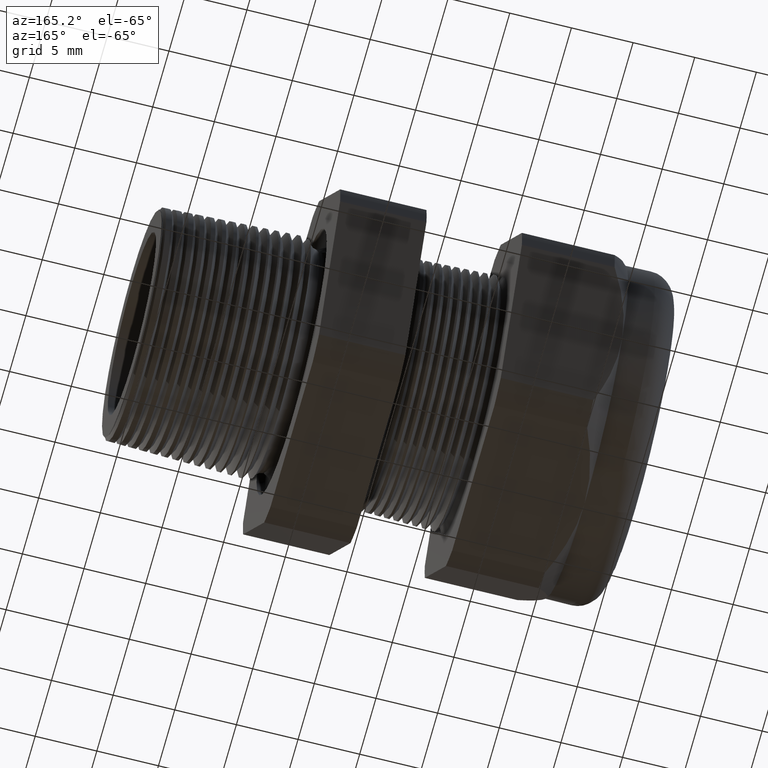
[diagram: clean part render]
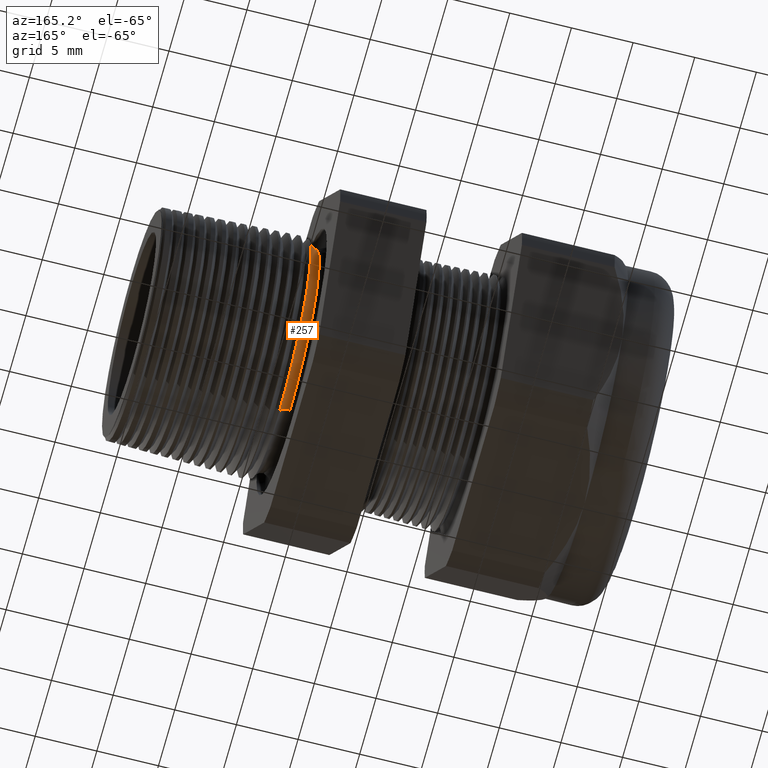
[diagram: same view with one face highlighted and labeled with its STEP entity id]
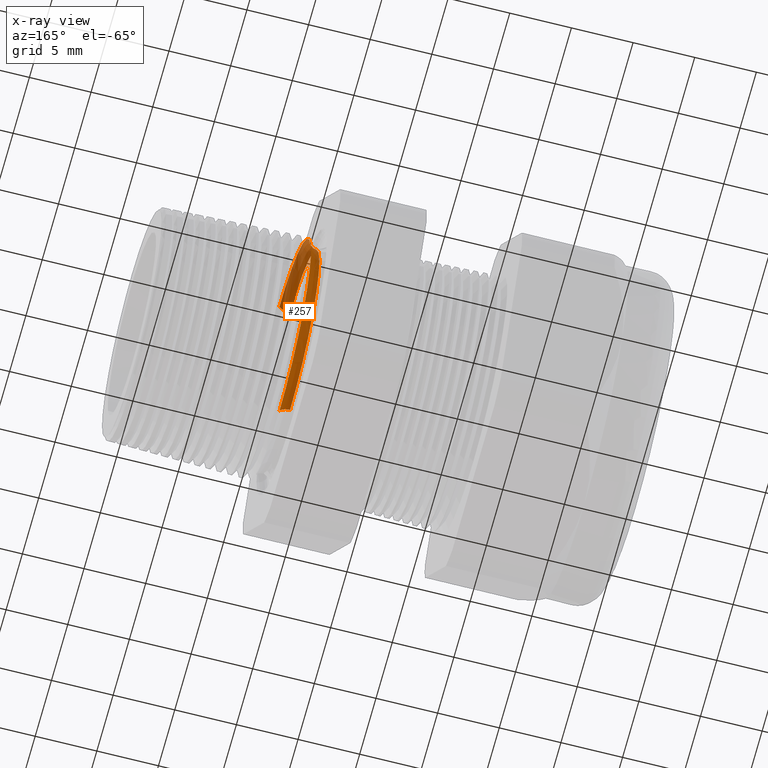
[diagram: x-ray of the same camera — body ghosted, the highlighted face saturated]
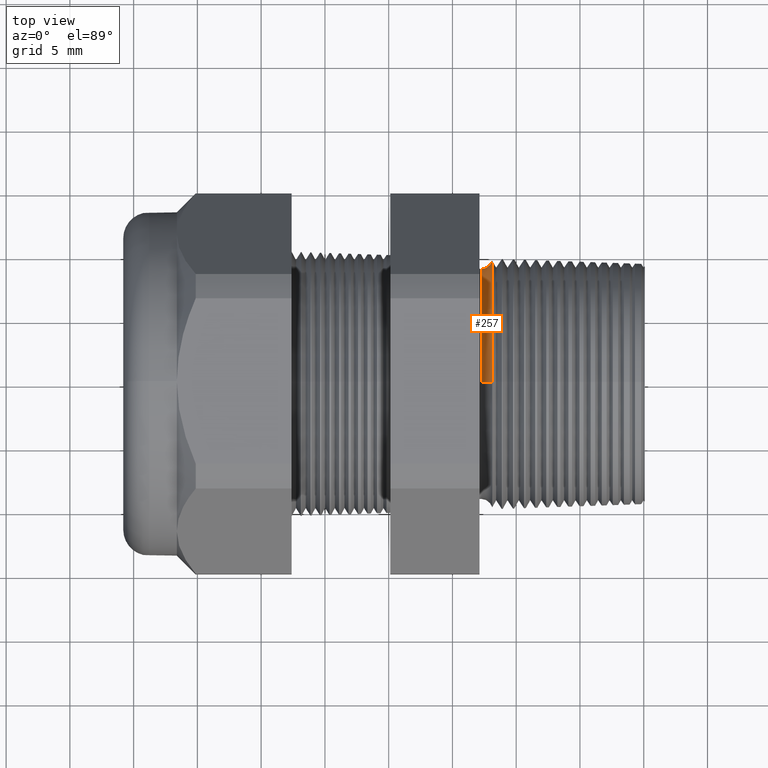
[diagram: same view with one face highlighted and labeled with its STEP entity id]
A machine part, auxiliary view. The second image highlights one B-rep face of the part: STEP entity #257.
The next image is the same camera in x-ray: the body ghosted, the highlighted face saturated — about 32% of this face is hidden behind the body in this view.
A second angle (top view) of the same face is appended — the face is thin or edge-on in the first view.
In plain terms, the highlighted toroidal blend (fillet) surface has major radius 9.8993 mm and minor (blend) radius 0.889 mm.
Its self-contained STEP definition (entity closure, byte-faithful):
#250 = VERTEX_POINT ( 'NONE', #914 ) ;
#257 = ADVANCED_FACE ( 'NONE', ( #913 ), #976, .F. ) ;
#260 = ORIENTED_EDGE ( 'NONE', *, *, #322, .T. ) ;
#262 = ORIENTED_EDGE ( 'NONE', *, *, #263, .F. ) ;
#263 = EDGE_CURVE ( 'NONE', #323, #317, #971, .T. ) ;
#311 = EDGE_LOOP ( 'NONE', ( #260, #325, #315, #262 ) ) ;
#314 = EDGE_CURVE ( 'NONE', #324, #250, #1069, .T. ) ;
#315 = ORIENTED_EDGE ( 'NONE', *, *, #316, .F. ) ;
#316 = EDGE_CURVE ( 'NONE', #317, #250, #1064, .T. ) ;
#317 = VERTEX_POINT ( 'NONE', #1059 ) ;
#322 = EDGE_CURVE ( 'NONE', #323, #324, #1051, .T. ) ;
#323 = VERTEX_POINT ( 'NONE', #1047 ) ;
#324 = VERTEX_POINT ( 'NONE', #1046 ) ;
#325 = ORIENTED_EDGE ( 'NONE', *, *, #314, .T. ) ;
#913 = FACE_OUTER_BOUND ( 'NONE', #311, .T. ) ;
#914 = CARTESIAN_POINT ( 'NONE',  ( -0.3049999999999998300, 4.344250272197825000E-017, 0.3547349550272340700 ) ) ;
#967 = DIRECTION ( 'NONE',  ( 0.0000000000000000000, 0.0000000000000000000, 1.000000000000000000 ) ) ;
#968 = DIRECTION ( 'NONE',  ( 1.000000000000000000, 0.0000000000000000000, 0.0000000000000000000 ) ) ;
#969 = CARTESIAN_POINT ( 'NONE',  ( -0.2708719432804219100, 0.0000000000000000000, 0.0000000000000000000 ) ) ;
#970 = AXIS2_PLACEMENT_3D ( 'NONE', #969, #968, #967 ) ;
#971 = CIRCLE ( 'NONE', #970, 0.3819712095042733800 ) ;
#972 = DIRECTION ( 'NONE',  ( 0.0000000000000000000, 0.0000000000000000000, -1.000000000000000000 ) ) ;
#973 = DIRECTION ( 'NONE',  ( 1.000000000000000000, 0.0000000000000000000, 0.0000000000000000000 ) ) ;
#974 = CARTESIAN_POINT ( 'NONE',  ( -0.3049999999999998300, 0.0000000000000000000, 0.0000000000000000000 ) ) ;
#975 = AXIS2_PLACEMENT_3D ( 'NONE', #974, #973, #972 ) ;
#976 = TOROIDAL_SURFACE ( 'NONE', #975, 0.3897349550272340400, 0.03499999999999994800 ) ;
#1046 = CARTESIAN_POINT ( 'NONE',  ( -0.3049999999999998300, 0.0000000000000000000, -0.3547349550272340700 ) ) ;
#1047 = CARTESIAN_POINT ( 'NONE',  ( -0.2708719432804219100, 4.677798190858514200E-017, -0.3819712095042733800 ) ) ;
#1048 = DIRECTION ( 'NONE',  ( 0.0000000000000000000, 0.0000000000000000000, -1.000000000000000000 ) ) ;
#1049 = DIRECTION ( 'NONE',  ( 0.0000000000000000000, -1.000000000000000000, 0.0000000000000000000 ) ) ;
#1050 = AXIS2_PLACEMENT_3D ( 'NONE', #1056, #1049, #1048 ) ;
#1051 = CIRCLE ( 'NONE', #1050, 0.03499999999999996900 ) ;
#1056 = CARTESIAN_POINT ( 'NONE',  ( -0.3049999999999998300, 0.0000000000000000000, -0.3897349550272340400 ) ) ;
#1059 = CARTESIAN_POINT ( 'NONE',  ( -0.2708719432804219100, 0.0000000000000000000, 0.3819712095042733800 ) ) ;
#1060 = DIRECTION ( 'NONE',  ( 0.0000000000000000000, 1.224646799147352700E-016, 1.000000000000000000 ) ) ;
#1061 = DIRECTION ( 'NONE',  ( 0.0000000000000000000, 1.000000000000000000, -1.224646799147353200E-016 ) ) ;
#1062 = CARTESIAN_POINT ( 'NONE',  ( -0.3049999999999998300, 4.772876651899397700E-017, 0.3897349550272340400 ) ) ;
#1063 = AXIS2_PLACEMENT_3D ( 'NONE', #1062, #1061, #1060 ) ;
#1064 = CIRCLE ( 'NONE', #1063, 0.03499999999999996900 ) ;
#1065 = DIRECTION ( 'NONE',  ( 0.0000000000000000000, 0.0000000000000000000, -1.000000000000000000 ) ) ;
#1066 = DIRECTION ( 'NONE',  ( 1.000000000000000000, 0.0000000000000000000, 0.0000000000000000000 ) ) ;
#1068 = AXIS2_PLACEMENT_3D ( 'NONE', #1074, #1066, #1065 ) ;
#1069 = CIRCLE ( 'NONE', #1068, 0.3547349550272340700 ) ;
#1074 = CARTESIAN_POINT ( 'NONE',  ( -0.3049999999999998300, 0.0000000000000000000, 0.0000000000000000000 ) ) ;